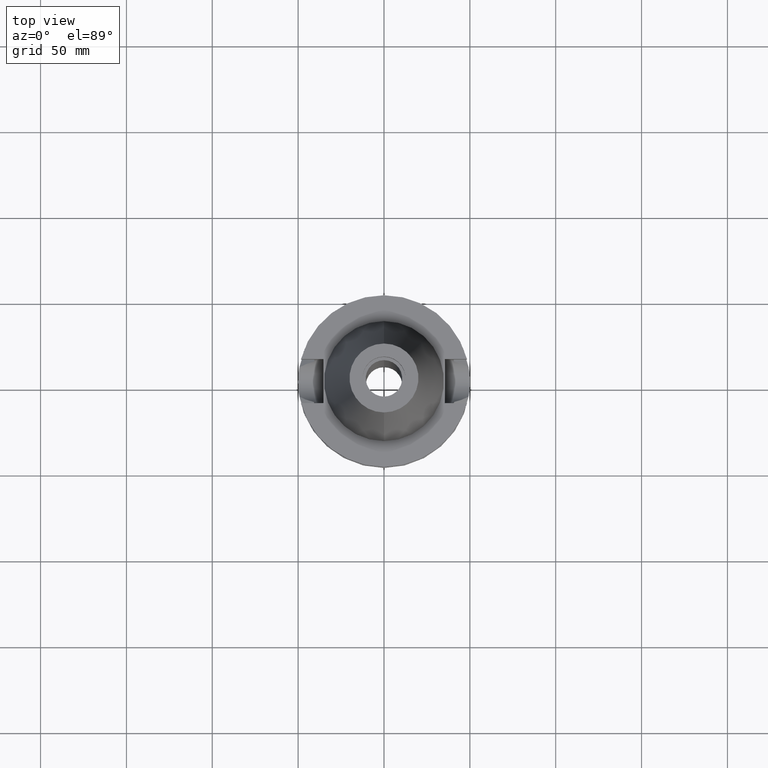
[diagram: clean part render]
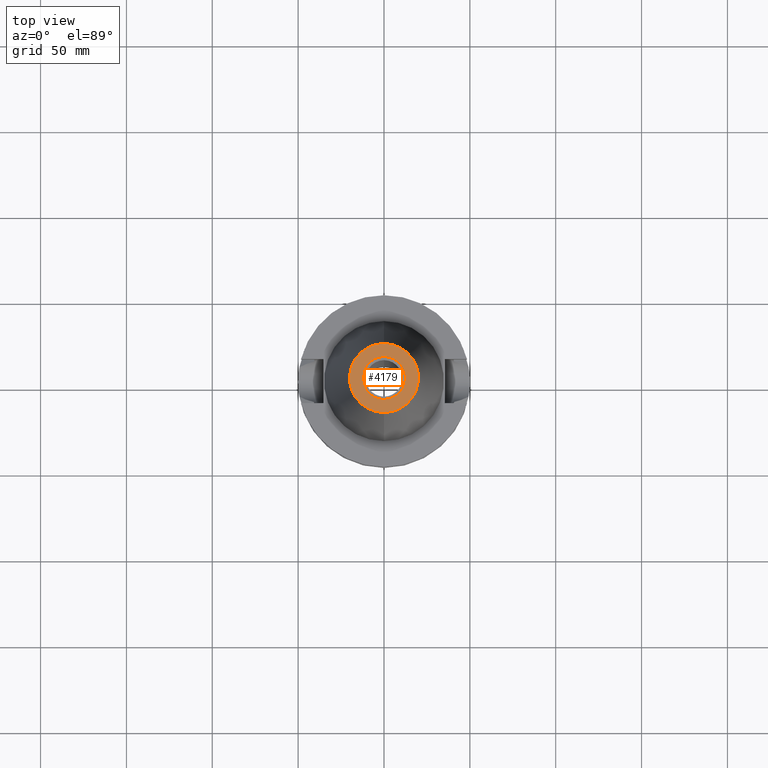
[diagram: same view with one face highlighted and labeled with its STEP entity id]
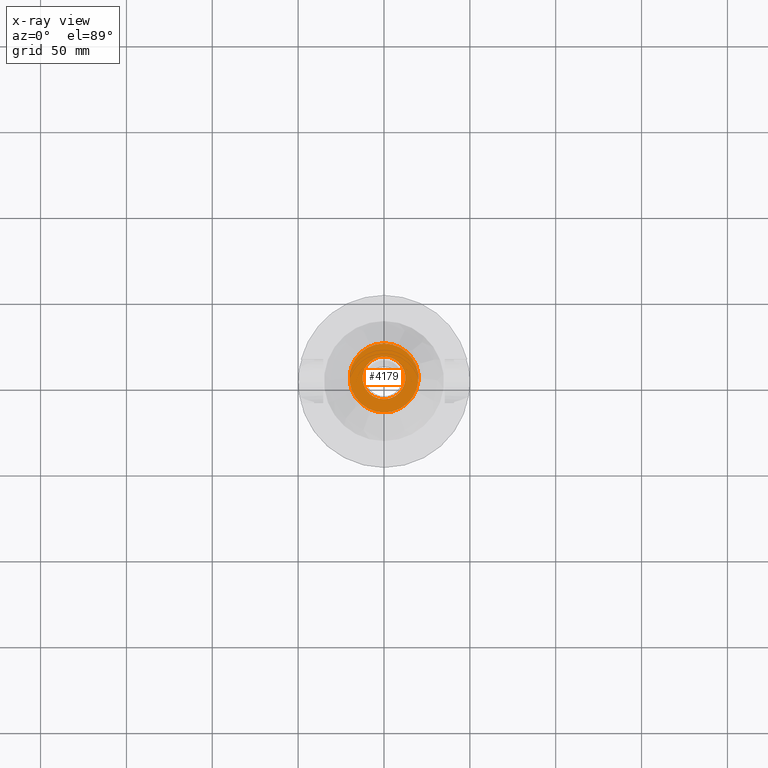
[diagram: x-ray of the same camera — body ghosted, the highlighted face saturated]
A machine part, top view. The second image highlights one B-rep face of the part: STEP entity #4179.
The next image is the same camera in x-ray: the body ghosted, the highlighted face saturated — about 0% of this face is hidden behind the body in this view.
In plain terms, the highlighted planar face has unit normal (0, 0, -1).
Its self-contained STEP definition (entity closure, byte-faithful):
#2021=CARTESIAN_POINT('',(0.E0,1.847992019913E-14,1.018E2));
#2022=DIRECTION('',(0.E0,0.E0,-1.E0));
#2023=DIRECTION('',(0.E0,-1.E0,0.E0));
#2024=AXIS2_PLACEMENT_3D('',#2021,#2022,#2023);
#2029=CARTESIAN_POINT('',(0.E0,1.847992019913E-14,1.018E2));
#2030=DIRECTION('',(0.E0,0.E0,-1.E0));
#2031=DIRECTION('',(0.E0,1.E0,0.E0));
#2032=AXIS2_PLACEMENT_3D('',#2029,#2030,#2031);
#2037=CARTESIAN_POINT('',(0.E0,2.717368782628E-14,1.018E2));
#2038=DIRECTION('',(0.E0,0.E0,1.E0));
#2039=DIRECTION('',(0.E0,-1.E0,0.E0));
#2040=AXIS2_PLACEMENT_3D('',#2037,#2038,#2039);
#2045=CARTESIAN_POINT('',(0.E0,2.717368782628E-14,1.018E2));
#2046=DIRECTION('',(0.E0,0.E0,1.E0));
#2047=DIRECTION('',(0.E0,1.E0,0.E0));
#2048=AXIS2_PLACEMENT_3D('',#2045,#2046,#2047);
#2484=CARTESIAN_POINT('',(0.E0,1.25E1,1.018E2));
#2486=VERTEX_POINT('',#2484);
#2487=CARTESIAN_POINT('',(0.E0,-1.25E1,1.018E2));
#2488=VERTEX_POINT('',#2487);
#2768=CARTESIAN_POINT('',(0.E0,2.007942971896E1,1.018E2));
#2769=VERTEX_POINT('',#2768);
#2770=CARTESIAN_POINT('',(0.E0,-2.007942971896E1,1.018E2));
#2771=VERTEX_POINT('',#2770);
#4166=CARTESIAN_POINT('',(0.E0,2.471337240679E-14,1.018E2));
#4167=DIRECTION('',(0.E0,0.E0,-1.E0));
#4168=DIRECTION('',(0.E0,-1.E0,0.E0));
#4169=AXIS2_PLACEMENT_3D('',#4166,#4167,#4168);
#4170=PLANE('',#4169);
#4171=ORIENTED_EDGE('',*,*,#4145,.T.);
#4172=ORIENTED_EDGE('',*,*,#4161,.T.);
#4173=EDGE_LOOP('',(#4171,#4172));
#4174=FACE_OUTER_BOUND('',#4173,.F.);
#4175=ORIENTED_EDGE('',*,*,#2853,.T.);
#4176=ORIENTED_EDGE('',*,*,#2871,.T.);
#4177=EDGE_LOOP('',(#4175,#4176));
#4178=FACE_BOUND('',#4177,.F.);
#2025=CIRCLE('',#2024,2.007942971896E1);
#2033=CIRCLE('',#2032,2.007942971896E1);
#2041=CIRCLE('',#2040,1.25E1);
#2049=CIRCLE('',#2048,1.25E1);
#2853=EDGE_CURVE('',#2488,#2486,#2041,.T.);
#2871=EDGE_CURVE('',#2486,#2488,#2049,.T.);
#4145=EDGE_CURVE('',#2771,#2769,#2025,.T.);
#4161=EDGE_CURVE('',#2769,#2771,#2033,.T.);
#4179=ADVANCED_FACE('',(#4174,#4178),#4170,.F.);